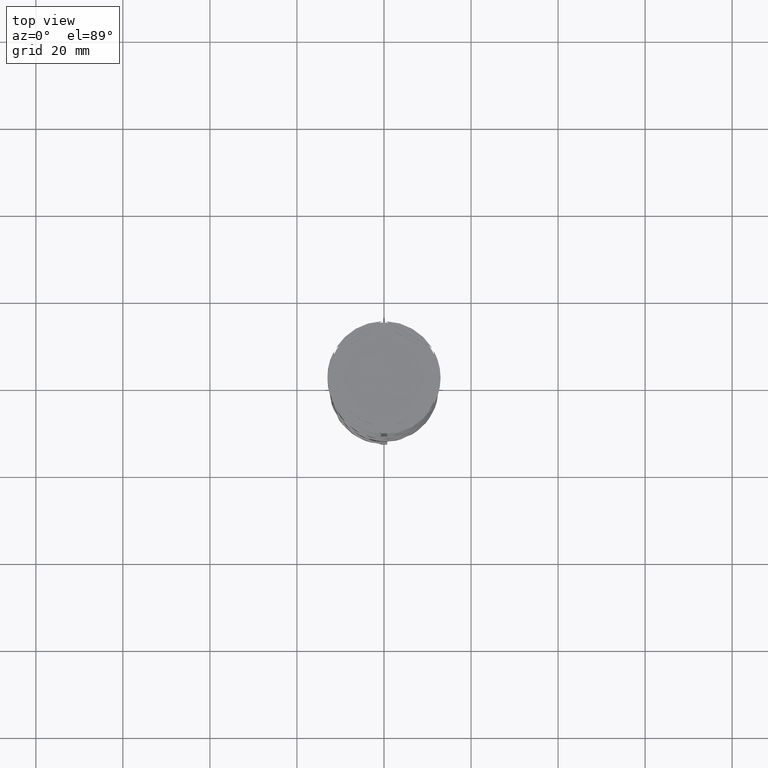
[diagram: clean part render]
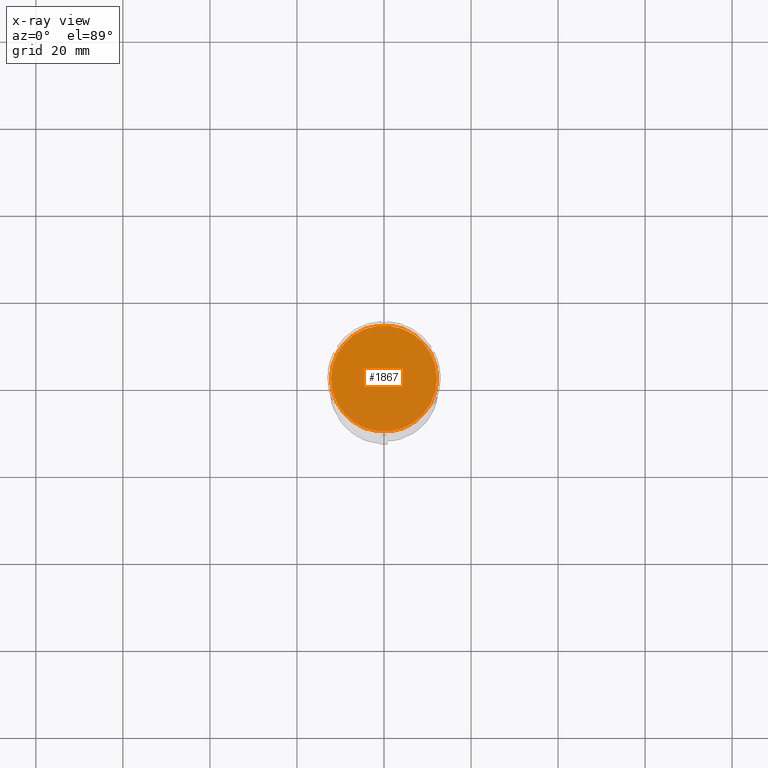
[diagram: x-ray — body ghosted, one internal face saturated and labeled with its STEP entity id]
A machine part, top view, then the same camera in x-ray: the body is ghosted and one INTERNAL B-rep face — a face not visible from any outside direction — is saturated and labeled: STEP entity #1867.
In plain terms, the highlighted planar face has unit normal (0, 0, -1).
Its self-contained STEP definition (entity closure, byte-faithful):
#230 = AXIS2_PLACEMENT_3D ( 'NONE', #1703, #3694, #781 ) ;
#320 = DIRECTION ( 'NONE',  ( -1.000000000000000000, 0.000000000000000000, 0.000000000000000000 ) ) ;
#410 = CARTESIAN_POINT ( 'NONE',  ( 12.20000000000000639, 1.512438796946981880E-15, -12.00000000000000000 ) ) ;
#453 = PLANE ( 'NONE',  #230 ) ;
#474 = FACE_OUTER_BOUND ( 'NONE', #3665, .T. ) ;
#602 = AXIS2_PLACEMENT_3D ( 'NONE', #1842, #3764, #320 ) ;
#781 = DIRECTION ( 'NONE',  ( -1.000000000000000000, 0.000000000000000000, -0.000000000000000000 ) ) ;
#1538 = CIRCLE ( 'NONE', #602, 12.20000000000000639 ) ;
#1630 = EDGE_CURVE ( 'NONE', #3562, #2229, #2656, .T. ) ;
#1699 = CARTESIAN_POINT ( 'NONE',  ( 0.000000000000000000, 0.000000000000000000, -12.00000000000000000 ) ) ;
#1703 = CARTESIAN_POINT ( 'NONE',  ( 0.000000000000000000, 0.000000000000000000, -12.00000000000000000 ) ) ;
#1842 = CARTESIAN_POINT ( 'NONE',  ( 0.000000000000000000, 0.000000000000000000, -12.00000000000000000 ) ) ;
#1867 = ADVANCED_FACE ( 'NONE', ( #474 ), #453, .F. ) ;
#2015 = ORIENTED_EDGE ( 'NONE', *, *, #4012, .T. ) ;
#2229 = VERTEX_POINT ( 'NONE', #3025 ) ;
#2419 = DIRECTION ( 'NONE',  ( -0.000000000000000000, -0.000000000000000000, 1.000000000000000000 ) ) ;
#2656 = CIRCLE ( 'NONE', #2991, 12.20000000000000639 ) ;
#2991 = AXIS2_PLACEMENT_3D ( 'NONE', #1699, #2419, #3279 ) ;
#3025 = CARTESIAN_POINT ( 'NONE',  ( -12.20000000000000639, 0.000000000000000000, -12.00000000000000000 ) ) ;
#3279 = DIRECTION ( 'NONE',  ( -1.000000000000000000, 0.000000000000000000, 0.000000000000000000 ) ) ;
#3562 = VERTEX_POINT ( 'NONE', #410 ) ;
#3665 = EDGE_LOOP ( 'NONE', ( #2015, #4010 ) ) ;
#3694 = DIRECTION ( 'NONE',  ( 0.000000000000000000, 0.000000000000000000, -1.000000000000000000 ) ) ;
#3764 = DIRECTION ( 'NONE',  ( -0.000000000000000000, -0.000000000000000000, 1.000000000000000000 ) ) ;
#4010 = ORIENTED_EDGE ( 'NONE', *, *, #1630, .T. ) ;
#4012 = EDGE_CURVE ( 'NONE', #2229, #3562, #1538, .T. ) ;